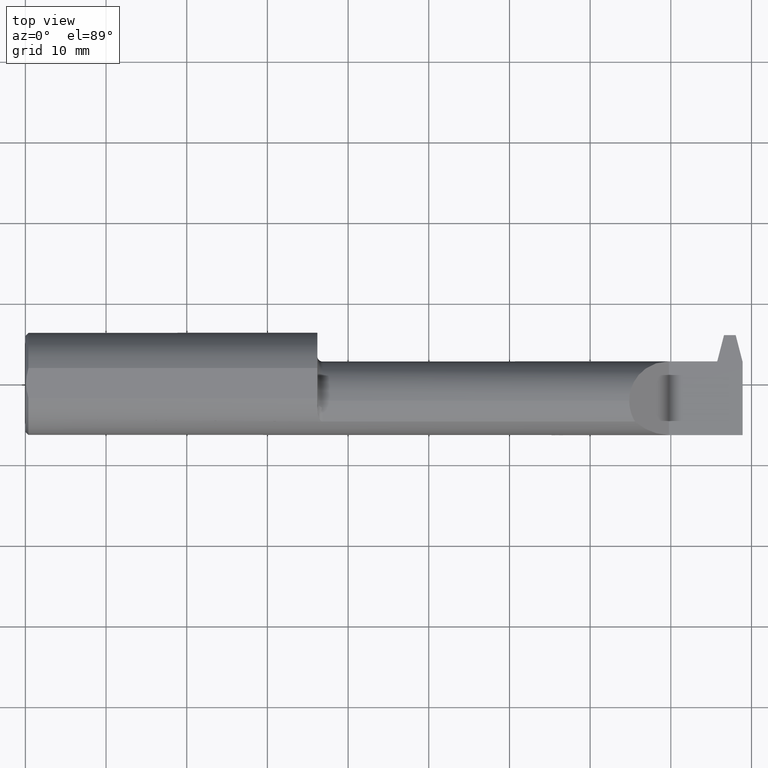
[diagram: clean part render]
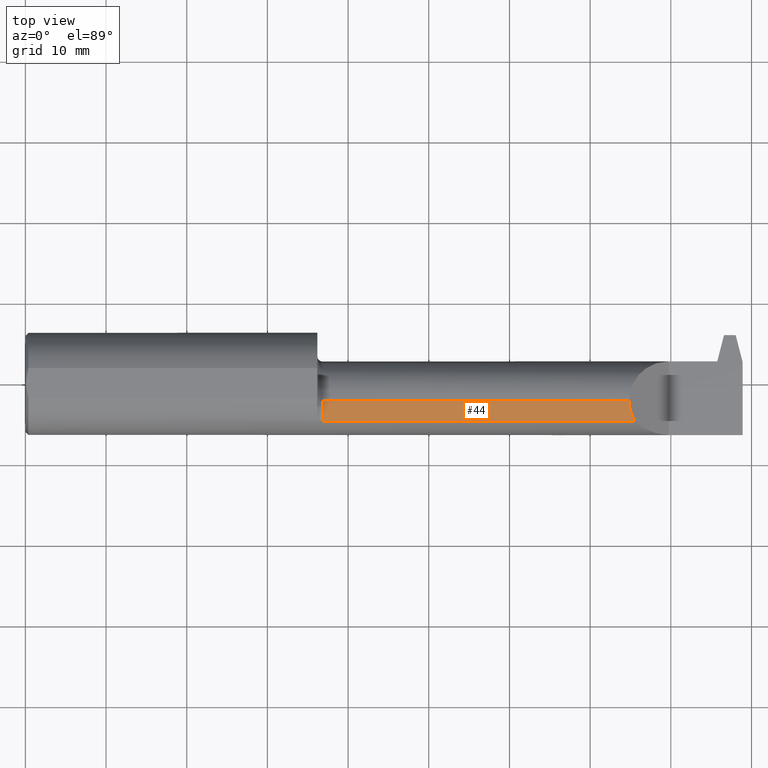
[diagram: same view with one face highlighted and labeled with its STEP entity id]
A machine part, top view. The second image highlights one B-rep face of the part: STEP entity #44.
In plain terms, the highlighted cylindrical surface (partial cylindrical patch) has radius 4.953 mm, axis along (-1, -0, -0).
Its self-contained STEP definition (entity closure, byte-faithful):
#10 = CARTESIAN_POINT ( 'NONE',  ( 1.449999999999999512, -0.08485000000000002263, 0.000000000000000000 ) ) ;
#14 = DIRECTION ( 'NONE',  ( 0.000000000000000000, 0.000000000000000000, -1.000000000000000000 ) ) ;
#19 = CIRCLE ( 'NONE', #578, 0.1950000000000000067 ) ;
#25 = LINE ( 'NONE', #333, #909 ) ;
#29 = CARTESIAN_POINT ( 'NONE',  ( 2.974762187678657632, -0.1862082793164402394, 0.1665878123213416218 ) ) ;
#33 = AXIS2_PLACEMENT_3D ( 'NONE', #676, #609, #74 ) ;
#39 = DIRECTION ( 'NONE',  ( -1.000000000000000000, -0.000000000000000000, -0.000000000000000000 ) ) ;
#44 = ADVANCED_FACE ( 'NONE', ( #825 ), #320, .T. ) ;
#72 =( BOUNDED_CURVE ( )  B_SPLINE_CURVE ( 3, ( #499, #929, #182, #29 ),
 .UNSPECIFIED., .F., .T. ) 
 B_SPLINE_CURVE_WITH_KNOTS ( ( 4, 4 ),
 ( 0.000000000000000000, 0.5466004890170823582 ),
 .UNSPECIFIED. ) 
 CURVE ( )  GEOMETRIC_REPRESENTATION_ITEM ( )  RATIONAL_B_SPLINE_CURVE ( ( 1.000000000000000000, 0.9752569136661357607, 0.9752569136661357607, 1.000000000000000000 ) ) 
 REPRESENTATION_ITEM ( '' )  );
#74 = DIRECTION ( 'NONE',  ( 0.000000000000000000, 0.000000000000000000, 1.000000000000000000 ) ) ;
#111 = CARTESIAN_POINT ( 'NONE',  ( 2.946349999999998914, -0.08485000000000002263, 0.1950000000000000067 ) ) ;
#119 = CARTESIAN_POINT ( 'NONE',  ( 2.399999999999999911, -0.1862082793164407946, 0.1665878123213411499 ) ) ;
#158 = EDGE_CURVE ( 'NONE', #331, #857, #638, .T. ) ;
#182 = CARTESIAN_POINT ( 'NONE',  ( 2.956061009574508791, -0.1554718819623024939, 0.1852889904254893805 ) ) ;
#192 = EDGE_LOOP ( 'NONE', ( #935, #505, #644, #402 ) ) ;
#197 = EDGE_CURVE ( 'NONE', #953, #857, #72, .T. ) ;
#268 = DIRECTION ( 'NONE',  ( 1.000000000000000000, 0.000000000000000000, 0.000000000000000000 ) ) ;
#320 = CYLINDRICAL_SURFACE ( 'NONE', #33, 0.1950000000000000067 ) ;
#331 = VERTEX_POINT ( 'NONE', #948 ) ;
#333 = CARTESIAN_POINT ( 'NONE',  ( 1.424999999999999600, -0.08485000000000002263, 0.1950000000000000067 ) ) ;
#339 = VECTOR ( 'NONE', #268, 39.37007874015748143 ) ;
#402 = ORIENTED_EDGE ( 'NONE', *, *, #158, .T. ) ;
#468 = DIRECTION ( 'NONE',  ( 1.000000000000000000, 0.000000000000000000, 0.000000000000000000 ) ) ;
#499 = CARTESIAN_POINT ( 'NONE',  ( 2.946349999999998914, -0.08485000000000002263, 0.1950000000000000067 ) ) ;
#505 = ORIENTED_EDGE ( 'NONE', *, *, #600, .T. ) ;
#578 = AXIS2_PLACEMENT_3D ( 'NONE', #10, #468, #14 ) ;
#600 = EDGE_CURVE ( 'NONE', #953, #971, #25, .T. ) ;
#609 = DIRECTION ( 'NONE',  ( -1.000000000000000000, -0.000000000000000000, -0.000000000000000000 ) ) ;
#638 = LINE ( 'NONE', #119, #339 ) ;
#644 = ORIENTED_EDGE ( 'NONE', *, *, #844, .T. ) ;
#676 = CARTESIAN_POINT ( 'NONE',  ( 1.424999999999999600, -0.08485000000000002263, 0.000000000000000000 ) ) ;
#809 = CARTESIAN_POINT ( 'NONE',  ( 1.449999999999999512, -0.08485000000000002263, 0.1950000000000000067 ) ) ;
#825 = FACE_OUTER_BOUND ( 'NONE', #192, .T. ) ;
#831 = CARTESIAN_POINT ( 'NONE',  ( 2.974762187678657632, -0.1862082793164402394, 0.1665878123213416218 ) ) ;
#844 = EDGE_CURVE ( 'NONE', #971, #331, #19, .T. ) ;
#857 = VERTEX_POINT ( 'NONE', #831 ) ;
#909 = VECTOR ( 'NONE', #39, 39.37007874015748143 ) ;
#929 = CARTESIAN_POINT ( 'NONE',  ( 2.946349999999999358, -0.1208286073214972500, 0.1949999999999999234 ) ) ;
#935 = ORIENTED_EDGE ( 'NONE', *, *, #197, .F. ) ;
#948 = CARTESIAN_POINT ( 'NONE',  ( 1.449999999999999512, -0.1862082793164407946, 0.1665878123213411499 ) ) ;
#953 = VERTEX_POINT ( 'NONE', #111 ) ;
#971 = VERTEX_POINT ( 'NONE', #809 ) ;